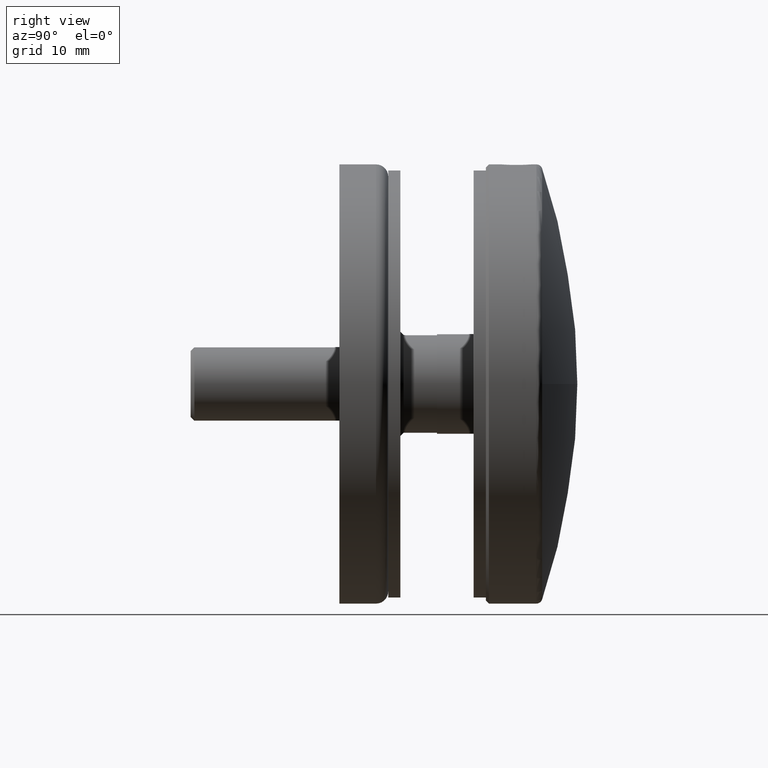
[diagram: clean part render]
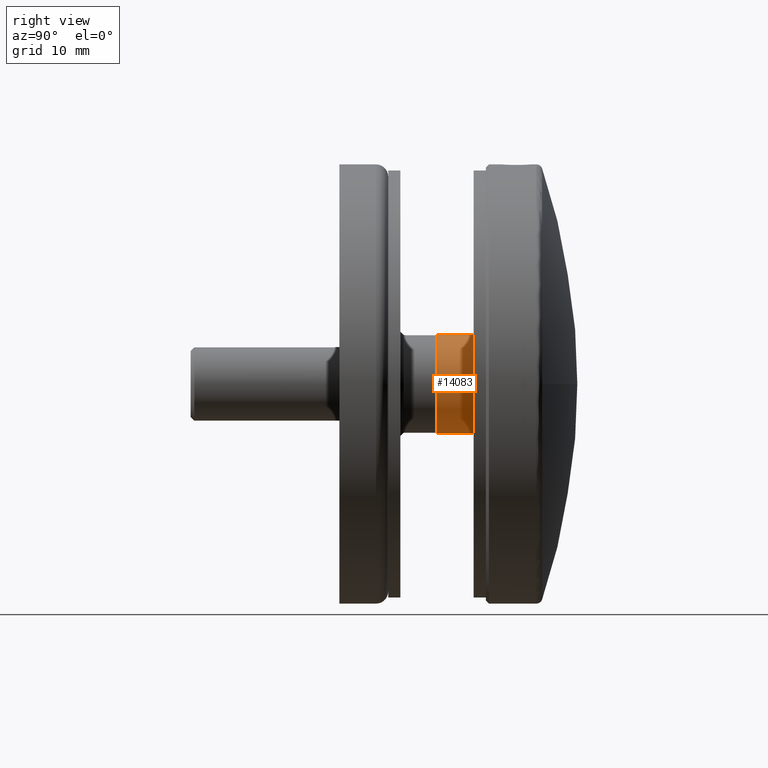
[diagram: same view with one face highlighted and labeled with its STEP entity id]
A machine part, right view. The second image highlights one B-rep face of the part: STEP entity #14083.
In plain terms, the highlighted cylindrical surface (partial cylindrical patch) has radius 8.15 mm, axis along (-0, -1, -0).
Its self-contained STEP definition (entity closure, byte-faithful):
#289 = EDGE_CURVE ( 'NONE', #12363, #13482, #7972, .T. ) ;
#379 = DIRECTION ( 'NONE',  ( 0.000000000000000000, 0.000000000000000000, 1.000000000000000000 ) ) ;
#998 = CARTESIAN_POINT ( 'NONE',  ( 0.000000000000000000, 6.000000000000000000, -8.150000000000000355 ) ) ;
#1171 = EDGE_CURVE ( 'NONE', #13482, #12056, #12647, .T. ) ;
#1598 = CARTESIAN_POINT ( 'NONE',  ( 0.000000000000000000, 0.000000000000000000, 0.000000000000000000 ) ) ;
#1787 = CARTESIAN_POINT ( 'NONE',  ( 9.980871413050929957E-16, 0.000000000000000000, 8.150000000000000355 ) ) ;
#2426 = ORIENTED_EDGE ( 'NONE', *, *, #1171, .T. ) ;
#2452 = DIRECTION ( 'NONE',  ( 0.000000000000000000, 0.000000000000000000, 1.000000000000000000 ) ) ;
#2459 = CYLINDRICAL_SURFACE ( 'NONE', #5247, 8.150000000000000355 ) ;
#3318 = CARTESIAN_POINT ( 'NONE',  ( 9.980871413050929957E-16, 6.000000000000000000, 8.150000000000000355 ) ) ;
#3482 = ORIENTED_EDGE ( 'NONE', *, *, #12153, .F. ) ;
#3607 = VECTOR ( 'NONE', #13066, 1000.000000000000000 ) ;
#5247 = AXIS2_PLACEMENT_3D ( 'NONE', #9319, #13775, #5908 ) ;
#5400 = CIRCLE ( 'NONE', #12514, 8.150000000000000355 ) ;
#5584 = FACE_OUTER_BOUND ( 'NONE', #13038, .T. ) ;
#5908 = DIRECTION ( 'NONE',  ( 0.000000000000000000, 0.000000000000000000, -1.000000000000000000 ) ) ;
#6405 = CARTESIAN_POINT ( 'NONE',  ( 9.980871413050929957E-16, 6.000000000000000000, 8.150000000000000355 ) ) ;
#6430 = DIRECTION ( 'NONE',  ( -0.000000000000000000, -1.000000000000000000, -0.000000000000000000 ) ) ;
#7482 = ORIENTED_EDGE ( 'NONE', *, *, #289, .T. ) ;
#7972 = LINE ( 'NONE', #6405, #3607 ) ;
#7982 = VECTOR ( 'NONE', #6430, 1000.000000000000000 ) ;
#8099 = CARTESIAN_POINT ( 'NONE',  ( 0.000000000000000000, 6.000000000000000000, 0.000000000000000000 ) ) ;
#8302 = CARTESIAN_POINT ( 'NONE',  ( 0.000000000000000000, 0.000000000000000000, -8.150000000000000355 ) ) ;
#8945 = VERTEX_POINT ( 'NONE', #9255 ) ;
#9255 = CARTESIAN_POINT ( 'NONE',  ( 0.000000000000000000, 6.000000000000000000, -8.150000000000000355 ) ) ;
#9319 = CARTESIAN_POINT ( 'NONE',  ( 0.000000000000000000, 6.000000000000000000, 0.000000000000000000 ) ) ;
#9926 = ORIENTED_EDGE ( 'NONE', *, *, #14365, .F. ) ;
#10183 = DIRECTION ( 'NONE',  ( 0.000000000000000000, 1.000000000000000000, 0.000000000000000000 ) ) ;
#10587 = AXIS2_PLACEMENT_3D ( 'NONE', #1598, #13666, #379 ) ;
#12056 = VERTEX_POINT ( 'NONE', #8302 ) ;
#12153 = EDGE_CURVE ( 'NONE', #8945, #12056, #14372, .T. ) ;
#12363 = VERTEX_POINT ( 'NONE', #3318 ) ;
#12514 = AXIS2_PLACEMENT_3D ( 'NONE', #8099, #10183, #2452 ) ;
#12647 = CIRCLE ( 'NONE', #10587, 8.150000000000000355 ) ;
#13038 = EDGE_LOOP ( 'NONE', ( #9926, #7482, #2426, #3482 ) ) ;
#13066 = DIRECTION ( 'NONE',  ( -0.000000000000000000, -1.000000000000000000, -0.000000000000000000 ) ) ;
#13482 = VERTEX_POINT ( 'NONE', #1787 ) ;
#13666 = DIRECTION ( 'NONE',  ( 0.000000000000000000, 1.000000000000000000, 0.000000000000000000 ) ) ;
#13775 = DIRECTION ( 'NONE',  ( -0.000000000000000000, -1.000000000000000000, -0.000000000000000000 ) ) ;
#14083 = ADVANCED_FACE ( 'NONE', ( #5584 ), #2459, .T. ) ;
#14365 = EDGE_CURVE ( 'NONE', #12363, #8945, #5400, .T. ) ;
#14372 = LINE ( 'NONE', #998, #7982 ) ;